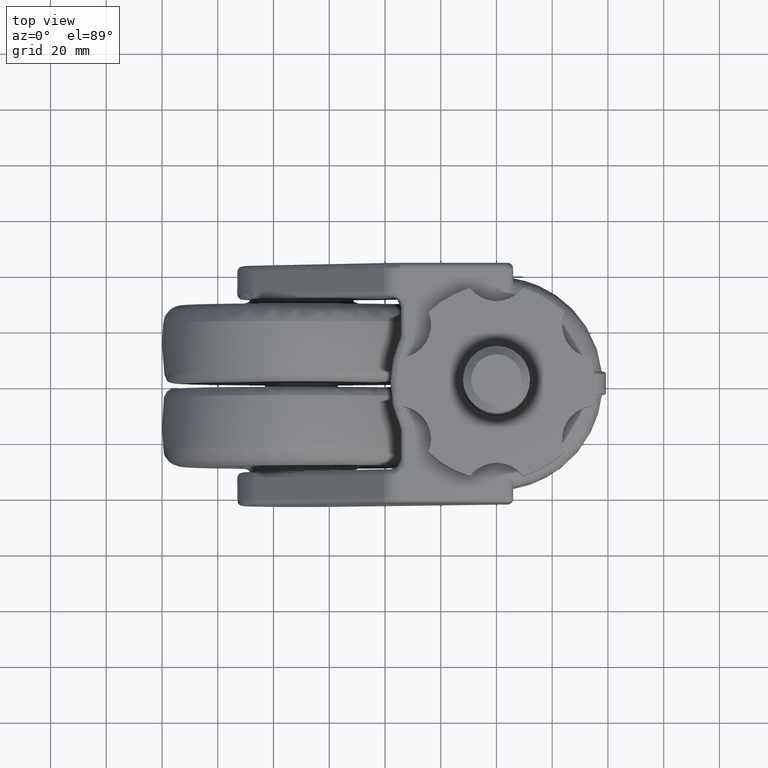
[diagram: clean part render]
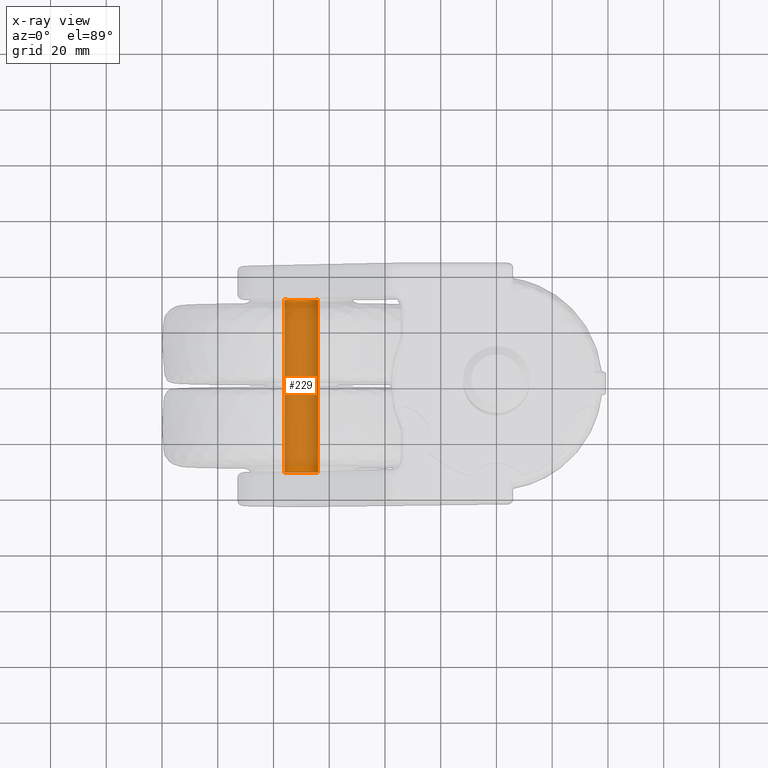
[diagram: x-ray — body ghosted, one internal face saturated and labeled with its STEP entity id]
A machine part, top view, then the same camera in x-ray: the body is ghosted and one INTERNAL B-rep face — a face not visible from any outside direction — is saturated and labeled: STEP entity #229.
In plain terms, the highlighted face is a freeform B-spline surface patch.
Its self-contained STEP definition (entity closure, byte-faithful):
#64=CARTESIAN_POINT('',(-64.046402717059692,-31.0,-81.255231987417574));
#65=VERTEX_POINT('',#64);
#79=CARTESIAN_POINT('',(-75.999771538378639,-31.0,-82.052359213722838));
#80=VERTEX_POINT('',#79);
#96=CARTESIAN_POINT('',(-75.999771538378212,31.0,-82.052359213773400));
#97=VERTEX_POINT('',#96);
#98=CARTESIAN_POINT('',(-75.999771538378212,31.0,-82.052359213773400));
#99=CARTESIAN_POINT('',(-75.999771538378639,-31.0,-82.052359213722838));
#100=QUASI_UNIFORM_CURVE('',1,(#98,#99),.UNSPECIFIED.,.F.,.U.);
#101=EDGE_CURVE('',#97,#80,#100,.T.);
#120=CARTESIAN_POINT('',(-64.046402730916256,31.0,-81.255231876649759));
#121=VERTEX_POINT('',#120);
#135=CARTESIAN_POINT('',(-64.046402730916256,31.0,-81.255231876649759));
#136=CARTESIAN_POINT('',(-64.046402717059692,-31.0,-81.255231987417574));
#137=QUASI_UNIFORM_CURVE('',1,(#135,#136),.UNSPECIFIED.,.F.,.U.);
#138=EDGE_CURVE('',#121,#65,#137,.T.);
#143=CARTESIAN_POINT('',(-75.999771538385033,32.550000000000011,-82.052359212990240));
#144=CARTESIAN_POINT('',(-75.947412325394794,32.550000000000011,-88.052130751375273));
#145=CARTESIAN_POINT('',(-69.947640787009760,32.550000000000011,-87.999771538385033));
#146=CARTESIAN_POINT('',(-63.947869248624734,32.550000000000011,-87.947412325394794));
#147=CARTESIAN_POINT('',(-64.000228461614967,32.550000000000011,-81.947640787009760));
#148=CARTESIAN_POINT('',(-64.003261412438334,32.550000000000004,-81.600099046250961));
#149=CARTESIAN_POINT('',(-64.046402717046760,32.550000000000011,-81.255231987521029));
#150=CARTESIAN_POINT('',(-75.999771538385033,-32.588750000000012,-82.052359212990240));
#151=CARTESIAN_POINT('',(-75.947412325394794,-32.588750000000012,-88.052130751375273));
#152=CARTESIAN_POINT('',(-69.947640787009760,-32.588750000000012,-87.999771538385033));
#153=CARTESIAN_POINT('',(-63.947869248624734,-32.588750000000012,-87.947412325394794));
#154=CARTESIAN_POINT('',(-64.000228461614967,-32.588750000000012,-81.947640787009760));
#155=CARTESIAN_POINT('',(-64.003261412438334,-32.588750000000012,-81.600099046250961));
#156=CARTESIAN_POINT('',(-64.046402717046760,-32.588750000000005,-81.255231987521029));
#164=(BOUNDED_SURFACE()B_SPLINE_SURFACE(2,1,((#143,#150),(#144,#151),(#145,#152),(#146,#153),(#147,#154),(#148,#155),(#149,#156)),.UNSPECIFIED.,.F.,.F.,.U.)B_SPLINE_SURFACE_WITH_KNOTS((3,2,2,3),(2,2),(0.0,9.941125496954291,19.882250993908581,20.677541033664930),(0.0,65.138750000000016),.UNSPECIFIED.)GEOMETRIC_REPRESENTATION_ITEM()RATIONAL_B_SPLINE_SURFACE(((1.0,1.0),(0.707106781186548,0.707106781186548),(1.0,1.0),(0.707106781186548,0.707106781186548),(1.0,1.0),(0.976568542494924,0.976568542494924),(0.956886118190660,0.956886118190660)))REPRESENTATION_ITEM('')SURFACE());
#165=CARTESIAN_POINT('',(-70.0,-31.0,-88.000000000000014));
#166=VERTEX_POINT('',#165);
#167=CARTESIAN_POINT('',(-64.046402717059692,-31.000000000000004,-81.255231987417574));
#168=CARTESIAN_POINT('',(-64.0,-31.000000000000004,-81.626170434694387));
#169=CARTESIAN_POINT('',(-64.0,-31.0,-82.0));
#170=CARTESIAN_POINT('',(-64.000000000000014,-31.000000000000007,-88.0));
#171=CARTESIAN_POINT('',(-70.0,-31.0,-88.000000000000014));
#179=(BOUNDED_CURVE()B_SPLINE_CURVE(2,(#167,#168,#169,#170,#171),.UNSPECIFIED.,.F.,.U.)B_SPLINE_CURVE_WITH_KNOTS((3,2,3),(0.228526071023439,0.250000000000000,0.500000000000000),.UNSPECIFIED.)CURVE()GEOMETRIC_REPRESENTATION_ITEM()RATIONAL_B_SPLINE_CURVE((0.954005430263346,0.974841727285934,1.0,0.707106781186548,1.0))REPRESENTATION_ITEM(''));
#180=EDGE_CURVE('',#65,#166,#179,.T.);
#181=ORIENTED_EDGE('',*,*,#180,.F.);
#182=ORIENTED_EDGE('',*,*,#138,.F.);
#183=CARTESIAN_POINT('',(-70.0,31.0,-88.000000000000014));
#184=VERTEX_POINT('',#183);
#185=CARTESIAN_POINT('',(-70.0,31.0,-88.000000000000014));
#186=CARTESIAN_POINT('',(-64.000000000000014,31.000000000000007,-88.0));
#187=CARTESIAN_POINT('',(-64.0,31.0,-82.0));
#188=CARTESIAN_POINT('',(-64.0,30.999999999999993,-81.626170322629875));
#189=CARTESIAN_POINT('',(-64.046402730916256,31.000000000000004,-81.255231876649759));
#197=(BOUNDED_CURVE()B_SPLINE_CURVE(2,(#185,#186,#187,#188,#189),.UNSPECIFIED.,.F.,.U.)B_SPLINE_CURVE_WITH_KNOTS((3,2,3),(0.0,0.250000000000000,0.271473935251942),.UNSPECIFIED.)CURVE()GEOMETRIC_REPRESENTATION_ITEM()RATIONAL_B_SPLINE_CURVE((1.0,0.707106781186548,1.0,0.974841719933868,0.954005418085259))REPRESENTATION_ITEM(''));
#198=EDGE_CURVE('',#184,#121,#197,.T.);
#199=ORIENTED_EDGE('',*,*,#198,.F.);
#200=CARTESIAN_POINT('',(-75.999771538378212,31.0,-82.052359213773400));
#201=CARTESIAN_POINT('',(-75.947867262017070,30.999999999999993,-88.000000000000014));
#202=CARTESIAN_POINT('',(-70.0,31.0,-88.000000000000014));
#210=(BOUNDED_CURVE()B_SPLINE_CURVE(2,(#200,#201,#202),.UNSPECIFIED.,.F.,.U.)B_SPLINE_CURVE_WITH_KNOTS((3,3),(0.751539894380971,1.0),.UNSPECIFIED.)CURVE()GEOMETRIC_REPRESENTATION_ITEM()RATIONAL_B_SPLINE_CURVE((0.996414027993986,0.708910879674049,1.0))REPRESENTATION_ITEM(''));
#211=EDGE_CURVE('',#97,#184,#210,.T.);
#212=ORIENTED_EDGE('',*,*,#211,.F.);
#213=ORIENTED_EDGE('',*,*,#101,.T.);
#214=CARTESIAN_POINT('',(-70.0,-31.0,-88.000000000000014));
#215=CARTESIAN_POINT('',(-75.947867262117313,-31.0,-88.0));
#216=CARTESIAN_POINT('',(-75.999771538378639,-31.000000000000004,-82.052359213722838));
#224=(BOUNDED_CURVE()B_SPLINE_CURVE(2,(#214,#215,#216),.UNSPECIFIED.,.F.,.U.)B_SPLINE_CURVE_WITH_KNOTS((3,3),(0.500000000000000,0.748460105621997),.UNSPECIFIED.)CURVE()GEOMETRIC_REPRESENTATION_ITEM()RATIONAL_B_SPLINE_CURVE((1.0,0.708910879670572,0.996414028000855))REPRESENTATION_ITEM(''));
#225=EDGE_CURVE('',#166,#80,#224,.T.);
#226=ORIENTED_EDGE('',*,*,#225,.F.);
#227=EDGE_LOOP('',(#181,#182,#199,#212,#213,#226));
#228=FACE_OUTER_BOUND('',#227,.T.);
#229=ADVANCED_FACE('',(#228),#164,.F.);